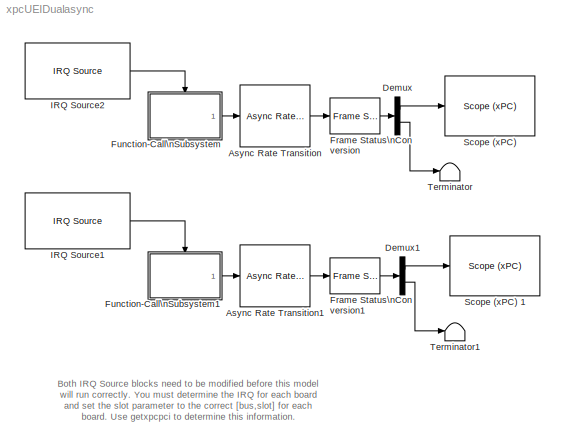
MODEL xpcUEIDualasync
KIND model
BLOCK [Reference] Async Rate Transition  REF=xpclib/Asynchronous\nEvent/Async Rate Transition
  Ports = [1, 1]
  ShowPortLabels = on
  SourceBlock = xpclib/Asynchronous\nEvent/Async Rate Transition
  SourceType = Rate Transition
  sample_time = -1
BLOCK [Reference] Async Rate Transition1  REF=xpclib/Asynchronous\nEvent/Async Rate Transition
  Ports = [1, 1]
  ShowPortLabels = on
  SourceBlock = xpclib/Asynchronous\nEvent/Async Rate Transition
  SourceType = Rate Transition
  sample_time = -1
BLOCK [Demux] Demux
  Outputs = [5 -1]
  Ports = [1, 2]
BLOCK [Demux] Demux1
  Outputs = [5 -1]
  Ports = [1, 2]
BLOCK [Reference] Frame Status\nConversion  REF=dspsigattribs/Frame Status\nConversion
  Ports = [1, 1]
  ShowPortLabels = off
  SourceBlock = dspsigattribs/Frame Status\nConversion
  SourceType = Frame Status Conversion
  growRefPort = off
  outframe = Sample-based
BLOCK [Reference] Frame Status\nConversion1  REF=dspsigattribs/Frame Status\nConversion
  Ports = [1, 1]
  ShowPortLabels = off
  SourceBlock = dspsigattribs/Frame Status\nConversion
  SourceType = Frame Status Conversion
  growRefPort = off
  outframe = Sample-based
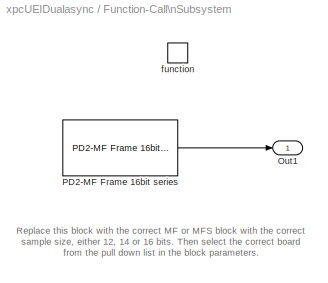
BLOCK [SubSystem] Function-Call\nSubsystem
  Ports = [0, 1, 0, 1]
  TreatAsAtomicUnit = on
BLOCK [Outport] Function-Call\nSubsystem/Out1
  BusOutputAsStruct = off
  IconDisplay = Port number
BLOCK [Reference] Function-Call\nSubsystem/PD2-MF Frame 16bit series   REF=xpclib/A//D\nFrame/UEI/PD2-MF Frame 16bit series 
  Ports = [0, 1]
  SourceBlock = xpclib/A//D\nFrame/UEI/PD2-MF Frame 16bit series
  SourceType = ueipd2mf16_ad_16
  boardtypein = PD2-MF-16-333/16H
  burst = 32
  channel = [1]
  clsource = Internal
  framesize = 32
  frametime = 0.001
  freq = -1
  gain = [1]
  mux = [0]
  outfmt = Frame (Signal Processing blockset needed)
  pcislot = -1
  range = +- 10 Volts
  sampletime = on
  scantime = -1
  sediff = Single Ended
  slave = off
BLOCK [TriggerPort] Function-Call\nSubsystem/function
  Ports = []
  TriggerType = function-call
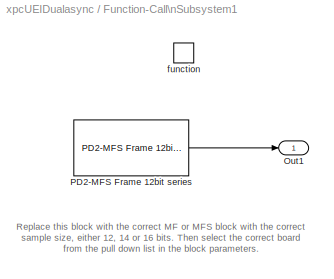
BLOCK [SubSystem] Function-Call\nSubsystem1
  Ports = [0, 1, 0, 1]
  TreatAsAtomicUnit = on
BLOCK [Outport] Function-Call\nSubsystem1/Out1
  BusOutputAsStruct = off
  IconDisplay = Port number
BLOCK [Reference] Function-Call\nSubsystem1/PD2-MFS Frame 12bit series   REF=xpclib/A//D\nFrame/UEI/PD2-MFS Frame 12bit series 
  Ports = [0, 1]
  SourceBlock = xpclib/A//D\nFrame/UEI/PD2-MFS Frame 12bit series
  SourceType = ueipd2mfs12_ad_15
  boardtypein = PD2-MFS-4-1M/12
  burst = 32
  channel = [1]
  clsource = Internal
  framesize = 32
  frametime = 0.001
  freq = -1
  gain = [1]
  mux = [0]
  outfmt = Frame (Signal Processing blockset needed)
  pcislot = -1
  range = +- 10 Volts
  sampletime = on
  scantime = -1
  slave = off
BLOCK [TriggerPort] Function-Call\nSubsystem1/function
  Ports = []
  TriggerType = function-call
BLOCK [Reference] IRQ Source1  REF=xpclib/Asynchronous\nEvent/IRQ Source
  Ports = [0, 1]
  SourceBlock = xpclib/Asynchronous\nEvent/IRQ Source
  SourceType = xpcinterrupt
  b_type = UEI_MFx
  irqNo = 9
  preempt = on
  slot = -1
BLOCK [Reference] IRQ Source2  REF=xpclib/Asynchronous\nEvent/IRQ Source
  Ports = [0, 1]
  SourceBlock = xpclib/Asynchronous\nEvent/IRQ Source
  SourceType = xpcinterrupt
  b_type = UEI_MFx
  irqNo = 10
  preempt = on
  slot = -1
BLOCK [Reference] Scope (xPC)   REF=xpclib/Misc./Scope (xPC) 
  Ports = [1]
  ShowPortLabels = on
  SourceBlock = xpclib/Misc./Scope (xPC)
  SourceType = xpcscopeblock
  autorestart = off
  autostart = on
  filename = data.dat
  formatstr = '%15.6f'
  grid = on
  interleave = 1
  mode = Lazy
  noprepostsamples = 0
  nosamples = 500
  scopeno = 1
  scopetype = Target
  triggerlevel = 0.0
  triggermode = FreeRun
  triggersample = 0
  triggerscope = 1
  triggersignal = 1
  triggerslope = Either
  viewmode = Graphical redraw
  writesize = 512
  ylimits = [0,0]
BLOCK [Reference] Scope (xPC) 1  REF=xpclib/Misc./Scope (xPC) 
  Ports = [1]
  ShowPortLabels = on
  SourceBlock = xpclib/Misc./Scope (xPC)
  SourceType = xpcscopeblock
  autorestart = off
  autostart = on
  filename = data.dat
  formatstr = '%15.6f'
  grid = on
  interleave = 1
  mode = Lazy
  noprepostsamples = 0
  nosamples = 500
  scopeno = 2
  scopetype = Target
  triggerlevel = 0.0
  triggermode = FreeRun
  triggersample = 0
  triggerscope = 1
  triggersignal = 1
  triggerslope = Either
  viewmode = Graphical redraw
  writesize = 512
  ylimits = [0,0]
BLOCK [Terminator] Terminator
BLOCK [Terminator] Terminator1
ANNOTATION (root): Both IRQ Source blocks need to be modified before this model\nwill run correctly. You must determine the IRQ for each board\nand set the slot parameter to the correct [bus,slot] for each\nboard. Use getxpcpci to determine this information.
ANNOTATION Function-Call\nSubsystem: Replace this block with the correct MF or MFS block with the correct\nsample size, either 12, 14 or 16 bits. Then select the correct board\nfrom the pull down list in the block parameters.
ANNOTATION Function-Call\nSubsystem1: Replace this block with the correct MF or MFS block with the correct\nsample size, either 12, 14 or 16 bits. Then select the correct board\nfrom the pull down list in the block parameters.\n
LINE Async Rate Transition1:1 -> Frame Status\nConversion1:1
LINE Async Rate Transition:1 -> Frame Status\nConversion:1
LINE Demux1:1 -> Scope (xPC) 1:1
LINE Demux1:2 -> Terminator1:1
LINE Demux:1 -> Scope (xPC) :1
LINE Demux:2 -> Terminator:1
LINE Frame Status\nConversion1:1 -> Demux1:1
LINE Frame Status\nConversion:1 -> Demux:1
LINE Function-Call\nSubsystem/PD2-MF Frame 16bit series :1 -> Function-Call\nSubsystem/Out1:1
LINE Function-Call\nSubsystem1/PD2-MFS Frame 12bit series :1 -> Function-Call\nSubsystem1/Out1:1
LINE Function-Call\nSubsystem1:1 -> Async Rate Transition1:1
LINE Function-Call\nSubsystem:1 -> Async Rate Transition:1
LINE IRQ Source1:1 -> Function-Call\nSubsystem1:trigger
LINE IRQ Source2:1 -> Function-Call\nSubsystem:trigger
